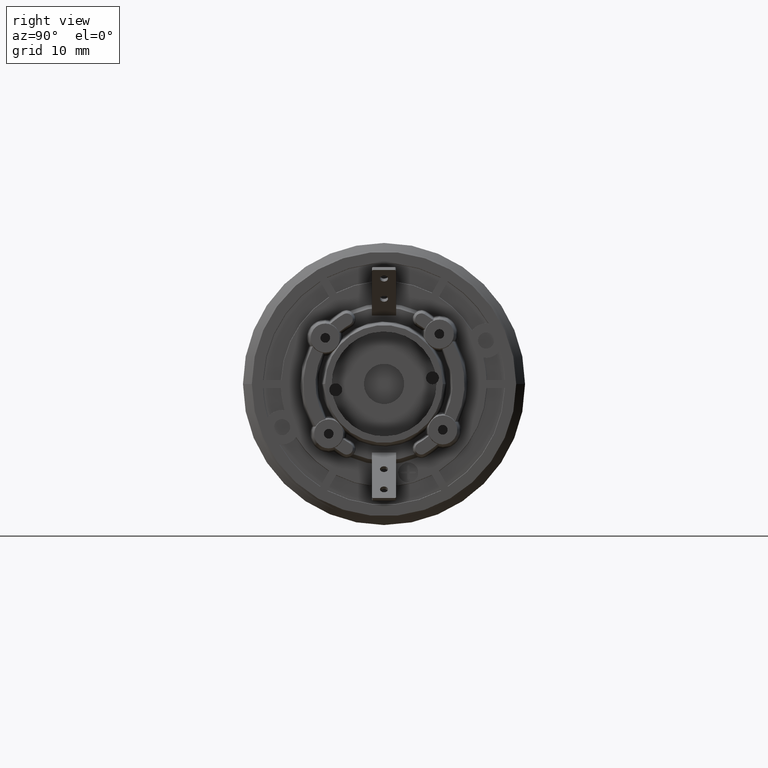
[diagram: clean part render]
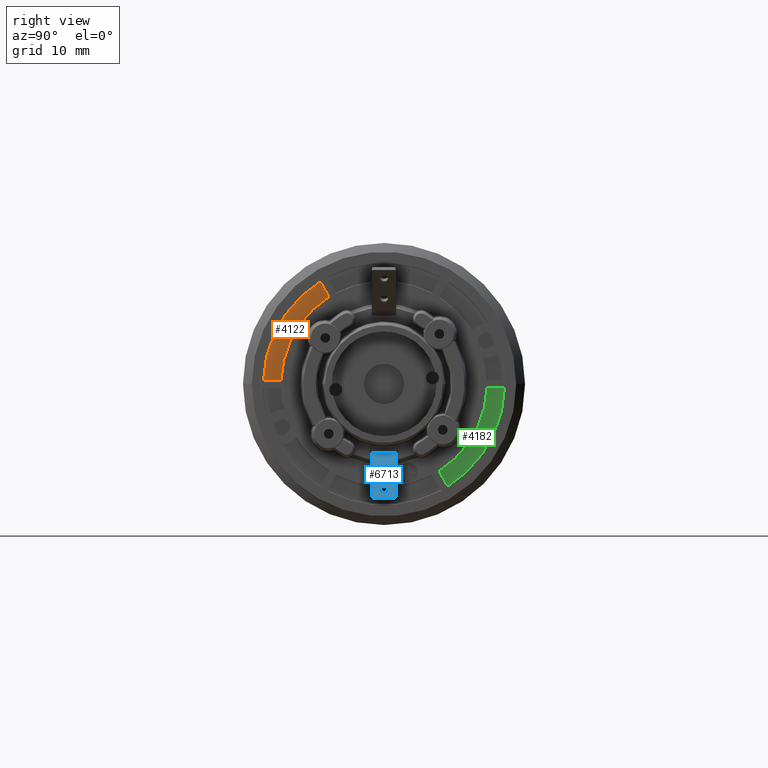
[diagram: same view with three faces highlighted in distinct colors, each labeled with its STEP entity id]
A machine part, right view with three faces highlighted in distinct colors.
Their STEP definitions:

[orange] entity #4122 — the highlighted planar face has unit normal (-1, 0, 0).
#413=CARTESIAN_POINT('',(6.74E0,0.E0,0.E0));
#414=DIRECTION('',(-1.E0,0.E0,0.E0));
#415=DIRECTION('',(0.E0,-9.992360224352E-1,3.908160011910E-2));
#416=AXIS2_PLACEMENT_3D('',#413,#414,#415);
#835=CARTESIAN_POINT('',(6.74E0,0.E0,0.E0));
#836=DIRECTION('',(-1.E0,0.E0,0.E0));
#837=DIRECTION('',(0.E0,-9.994410336720E-1,3.343082727998E-2));
#838=AXIS2_PLACEMENT_3D('',#835,#836,#837);
#973=DIRECTION('',(0.E0,-1.E0,0.E0));
#974=VECTOR('',#973,2.163925426802E0);
#975=CARTESIAN_POINT('',(6.74E0,-1.278397019812E1,5.E-1));
#976=LINE('',#975,#974);
#977=DIRECTION('',(0.E0,5.E-1,-8.660254037844E-1));
#978=VECTOR('',#977,2.163925426802E0);
#979=CARTESIAN_POINT('',(6.74E0,-7.906960514355E0,1.269525734430E1));
#980=LINE('',#979,#978);
#3420=CARTESIAN_POINT('',(6.74E0,-1.494789562493E1,5.E-1));
#3421=CARTESIAN_POINT('',(6.74E0,-7.906960514355E0,1.269525734430E1));
#3422=VERTEX_POINT('',#3420);
#3423=VERTEX_POINT('',#3421);
#3452=CARTESIAN_POINT('',(6.74E0,-1.278397019812E1,5.E-1));
#3453=CARTESIAN_POINT('',(6.74E0,-6.824997800954E0,1.082124295280E1));
#3454=VERTEX_POINT('',#3452);
#3455=VERTEX_POINT('',#3453);
#4108=CARTESIAN_POINT('',(6.74E0,0.E0,0.E0));
#4109=DIRECTION('',(-1.E0,0.E0,0.E0));
#4110=DIRECTION('',(0.E0,1.E0,0.E0));
#4111=AXIS2_PLACEMENT_3D('',#4108,#4109,#4110);
#4112=PLANE('',#4111);
#4114=ORIENTED_EDGE('',*,*,#4113,.T.);
#4116=ORIENTED_EDGE('',*,*,#4115,.T.);
#4117=ORIENTED_EDGE('',*,*,#3960,.F.);
#4119=ORIENTED_EDGE('',*,*,#4118,.T.);
#4120=EDGE_LOOP('',(#4114,#4116,#4117,#4119));
#4121=FACE_OUTER_BOUND('',#4120,.F.);
#4122=ADVANCED_FACE('',(#4121),#4112,.F.);
#417=CIRCLE('',#416,1.279374433176E1);
#839=CIRCLE('',#838,1.495625566824E1);
#3960=EDGE_CURVE('',#3454,#3455,#417,.T.);
#4113=EDGE_CURVE('',#3422,#3423,#839,.T.);
#4115=EDGE_CURVE('',#3423,#3455,#980,.T.);
#4118=EDGE_CURVE('',#3454,#3422,#976,.T.);

[blue] entity #6713 — the highlighted planar face has unit normal (0.7166, 0, 0.6975).
#2027=DIRECTION('',(0.E0,1.E0,0.E0));
#2028=VECTOR('',#2027,3.E0);
#2029=CARTESIAN_POINT('',(8.106025403784E0,-1.5E0,-8.5E0));
#2030=LINE('',#2029,#2028);
#2447=DIRECTION('',(6.974502074354E-1,0.E0,-7.166332452157E-1));
#2448=VECTOR('',#2447,7.685867609423E0);
#2449=CARTESIAN_POINT('',(8.106025403784E0,-1.5E0,-8.5E0));
#2450=LINE('',#2449,#2448);
#2451=CARTESIAN_POINT('',(1.255985009263E1,0.E0,-1.307632502846E1));
#2452=DIRECTION('',(7.166332452157E-1,0.E0,6.974502074354E-1));
#2453=DIRECTION('',(6.974502074354E-1,0.E0,-7.166332452157E-1));
#2454=AXIS2_PLACEMENT_3D('',#2451,#2452,#2453);
#2456=CARTESIAN_POINT('',(1.255985009263E1,0.E0,-1.307632502846E1));
#2457=DIRECTION('',(7.166332452157E-1,0.E0,6.974502074354E-1));
#2458=DIRECTION('',(-6.974502074354E-1,0.E0,7.166332452157E-1));
#2459=AXIS2_PLACEMENT_3D('',#2456,#2457,#2458);
#2461=CARTESIAN_POINT('',(1.011877436661E1,0.E0,-1.056810867020E1));
#2462=DIRECTION('',(7.166332452157E-1,0.E0,6.974502074354E-1));
#2463=DIRECTION('',(6.974502074354E-1,0.E0,-7.166332452157E-1));
#2464=AXIS2_PLACEMENT_3D('',#2461,#2462,#2463);
#2466=CARTESIAN_POINT('',(1.011877436661E1,0.E0,-1.056810867020E1));
#2467=DIRECTION('',(7.166332452157E-1,0.E0,6.974502074354E-1));
#2468=DIRECTION('',(-6.974502074354E-1,0.E0,7.166332452157E-1));
#2469=AXIS2_PLACEMENT_3D('',#2466,#2467,#2468);
#2471=CARTESIAN_POINT('',(1.346653536230E1,-1.3E0,-1.400794824724E1));
#2472=DIRECTION('',(7.166332452157E-1,0.E0,6.974502074354E-1));
#2473=DIRECTION('',(0.E0,-1.E0,-1.776356839400E-14));
#2474=AXIS2_PLACEMENT_3D('',#2471,#2472,#2473);
#2476=CARTESIAN_POINT('',(1.346653536230E1,1.3E0,-1.400794824724E1));
#2477=DIRECTION('',(7.166332452157E-1,0.E0,6.974502074354E-1));
#2478=DIRECTION('',(6.974502074354E-1,0.E0,-7.166332452157E-1));
#2479=AXIS2_PLACEMENT_3D('',#2476,#2477,#2478);
#2535=DIRECTION('',(0.E0,1.E0,0.E0));
#2536=VECTOR('',#2535,2.6E0);
#2537=CARTESIAN_POINT('',(1.360602540378E1,-1.3E0,-1.415127489628E1));
#2538=LINE('',#2537,#2536);
#2547=DIRECTION('',(6.974502074354E-1,0.E0,-7.166332452157E-1));
#2548=VECTOR('',#2547,7.685867609423E0);
#2549=CARTESIAN_POINT('',(8.106025403784E0,1.5E0,-8.5E0));
#2550=LINE('',#2549,#2548);
#3487=CARTESIAN_POINT('',(8.106025403784E0,-1.5E0,-8.5E0));
#3489=VERTEX_POINT('',#3487);
#3491=CARTESIAN_POINT('',(8.106025403784E0,1.5E0,-8.5E0));
#3493=VERTEX_POINT('',#3491);
#3494=CARTESIAN_POINT('',(1.290857519635E1,0.E0,-1.343464165107E1));
#3495=CARTESIAN_POINT('',(1.221112498891E1,0.E0,-1.271800840585E1));
#3496=VERTEX_POINT('',#3494);
#3497=VERTEX_POINT('',#3495);
#3498=CARTESIAN_POINT('',(1.046749947033E1,0.E0,-1.092642529281E1));
#3499=CARTESIAN_POINT('',(9.770049262890E0,0.E0,-1.020979204760E1));
#3500=VERTEX_POINT('',#3498);
#3501=VERTEX_POINT('',#3499);
#3510=CARTESIAN_POINT('',(1.346653536230E1,-1.5E0,-1.400794824724E1));
#3511=CARTESIAN_POINT('',(1.360602540378E1,-1.3E0,-1.415127489628E1));
#3512=VERTEX_POINT('',#3510);
#3513=VERTEX_POINT('',#3511);
#3522=CARTESIAN_POINT('',(1.360602540378E1,1.3E0,-1.415127489628E1));
#3523=VERTEX_POINT('',#3522);
#3524=CARTESIAN_POINT('',(1.346653536230E1,1.5E0,-1.400794824724E1));
#3525=VERTEX_POINT('',#3524);
#6685=CARTESIAN_POINT('',(8.106025403784E0,-1.5E0,-8.5E0));
#6686=DIRECTION('',(7.166332452157E-1,0.E0,6.974502074354E-1));
#6687=DIRECTION('',(6.974502074354E-1,0.E0,-7.166332452157E-1));
#6688=AXIS2_PLACEMENT_3D('',#6685,#6686,#6687);
#6689=PLANE('',#6688);
#6690=ORIENTED_EDGE('',*,*,#6675,.F.);
#6691=ORIENTED_EDGE('',*,*,#6665,.F.);
#6692=ORIENTED_EDGE('',*,*,#6131,.T.);
#6694=ORIENTED_EDGE('',*,*,#6693,.T.);
#6696=ORIENTED_EDGE('',*,*,#6695,.F.);
#6698=ORIENTED_EDGE('',*,*,#6697,.F.);
#6699=EDGE_LOOP('',(#6690,#6691,#6692,#6694,#6696,#6698));
#6700=FACE_OUTER_BOUND('',#6699,.F.);
#6702=ORIENTED_EDGE('',*,*,#6701,.T.);
#6704=ORIENTED_EDGE('',*,*,#6703,.T.);
#6705=EDGE_LOOP('',(#6702,#6704));
#6706=FACE_BOUND('',#6705,.F.);
#6708=ORIENTED_EDGE('',*,*,#6707,.T.);
#6710=ORIENTED_EDGE('',*,*,#6709,.T.);
#6711=EDGE_LOOP('',(#6708,#6710));
#6712=FACE_BOUND('',#6711,.F.);
#6713=ADVANCED_FACE('',(#6700,#6706,#6712),#6689,.T.);
#2455=CIRCLE('',#2454,5.E-1);
#2460=CIRCLE('',#2459,5.E-1);
#2465=CIRCLE('',#2464,5.E-1);
#2470=CIRCLE('',#2469,5.E-1);
#2475=CIRCLE('',#2474,2.E-1);
#2480=CIRCLE('',#2479,2.E-1);
#6131=EDGE_CURVE('',#3489,#3493,#2030,.T.);
#6665=EDGE_CURVE('',#3489,#3512,#2450,.T.);
#6675=EDGE_CURVE('',#3512,#3513,#2475,.T.);
#6693=EDGE_CURVE('',#3493,#3525,#2550,.T.);
#6695=EDGE_CURVE('',#3523,#3525,#2480,.T.);
#6697=EDGE_CURVE('',#3513,#3523,#2538,.T.);
#6701=EDGE_CURVE('',#3500,#3501,#2465,.T.);
#6703=EDGE_CURVE('',#3501,#3500,#2470,.T.);
#6707=EDGE_CURVE('',#3496,#3497,#2455,.T.);
#6709=EDGE_CURVE('',#3497,#3496,#2460,.T.);

[green] entity #4182 — the highlighted planar face has unit normal (-1, 0, 0).
#331=CARTESIAN_POINT('',(6.74E0,0.E0,0.E0));
#332=DIRECTION('',(-1.E0,0.E0,0.E0));
#333=DIRECTION('',(0.E0,9.992360224352E-1,-3.908160011910E-2));
#334=AXIS2_PLACEMENT_3D('',#331,#332,#333);
#753=CARTESIAN_POINT('',(6.74E0,0.E0,0.E0));
#754=DIRECTION('',(-1.E0,0.E0,0.E0));
#755=DIRECTION('',(0.E0,9.994410336720E-1,-3.343082727998E-2));
#756=AXIS2_PLACEMENT_3D('',#753,#754,#755);
#917=DIRECTION('',(0.E0,1.E0,0.E0));
#918=VECTOR('',#917,2.163925426802E0);
#919=CARTESIAN_POINT('',(6.74E0,1.278397019812E1,-5.E-1));
#920=LINE('',#919,#918);
#921=DIRECTION('',(0.E0,-5.E-1,8.660254037844E-1));
#922=VECTOR('',#921,2.163925426802E0);
#923=CARTESIAN_POINT('',(6.74E0,7.906960514355E0,-1.269525734430E1));
#924=LINE('',#923,#922);
#3404=CARTESIAN_POINT('',(6.74E0,1.494789562493E1,-5.E-1));
#3405=CARTESIAN_POINT('',(6.74E0,7.906960514355E0,-1.269525734430E1));
#3406=VERTEX_POINT('',#3404);
#3407=VERTEX_POINT('',#3405);
#3436=CARTESIAN_POINT('',(6.74E0,1.278397019812E1,-5.E-1));
#3437=CARTESIAN_POINT('',(6.74E0,6.824997800954E0,-1.082124295280E1));
#3438=VERTEX_POINT('',#3436);
#3439=VERTEX_POINT('',#3437);
#4168=CARTESIAN_POINT('',(6.74E0,0.E0,0.E0));
#4169=DIRECTION('',(-1.E0,0.E0,0.E0));
#4170=DIRECTION('',(0.E0,1.E0,0.E0));
#4171=AXIS2_PLACEMENT_3D('',#4168,#4169,#4170);
#4172=PLANE('',#4171);
#4174=ORIENTED_EDGE('',*,*,#4173,.T.);
#4176=ORIENTED_EDGE('',*,*,#4175,.T.);
#4177=ORIENTED_EDGE('',*,*,#3900,.F.);
#4179=ORIENTED_EDGE('',*,*,#4178,.T.);
#4180=EDGE_LOOP('',(#4174,#4176,#4177,#4179));
#4181=FACE_OUTER_BOUND('',#4180,.F.);
#4182=ADVANCED_FACE('',(#4181),#4172,.F.);
#335=CIRCLE('',#334,1.279374433176E1);
#757=CIRCLE('',#756,1.495625566824E1);
#3900=EDGE_CURVE('',#3438,#3439,#335,.T.);
#4173=EDGE_CURVE('',#3406,#3407,#757,.T.);
#4175=EDGE_CURVE('',#3407,#3439,#924,.T.);
#4178=EDGE_CURVE('',#3438,#3406,#920,.T.);